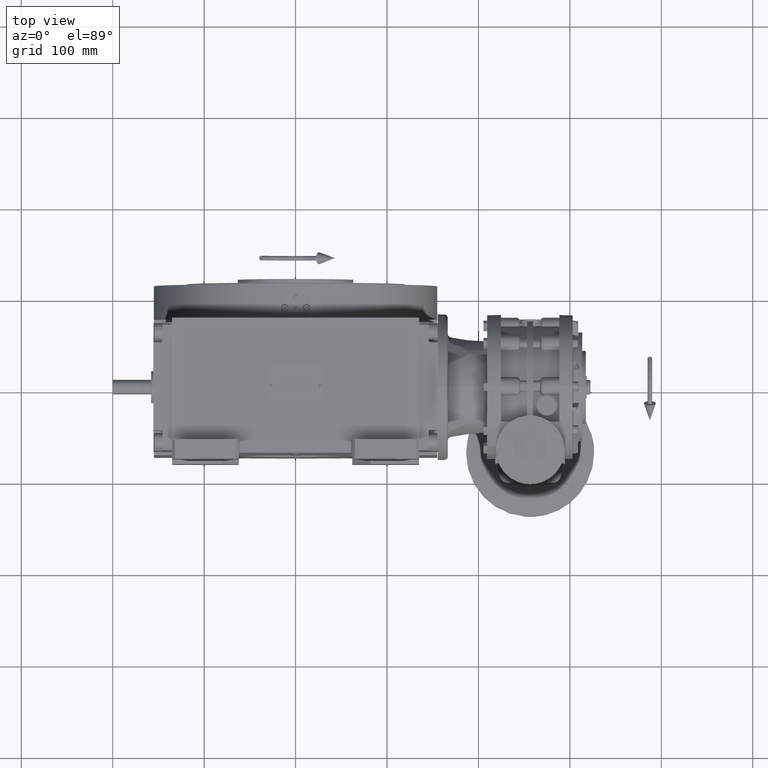
[diagram: clean part render]
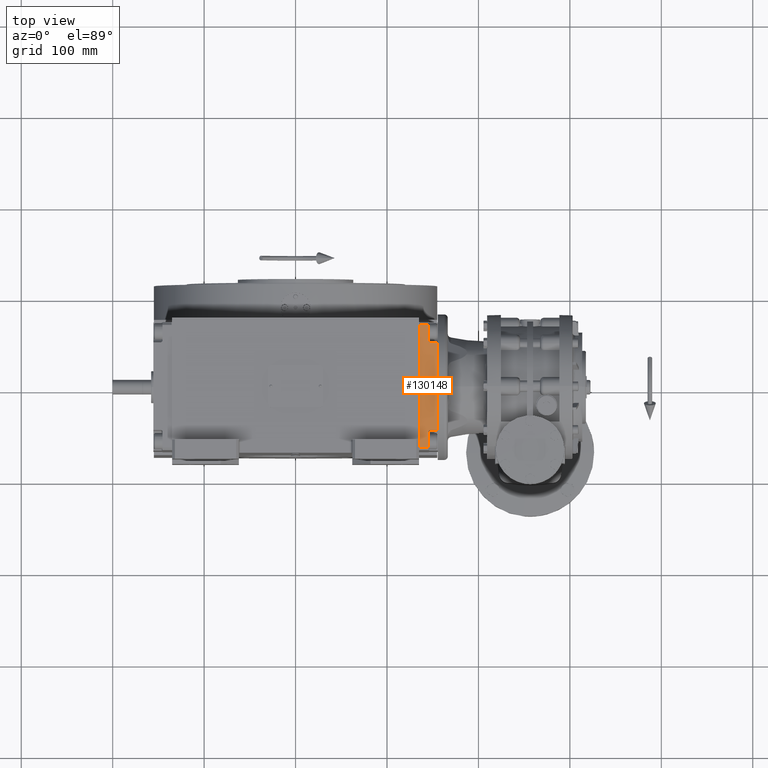
[diagram: same view with one face highlighted and labeled with its STEP entity id]
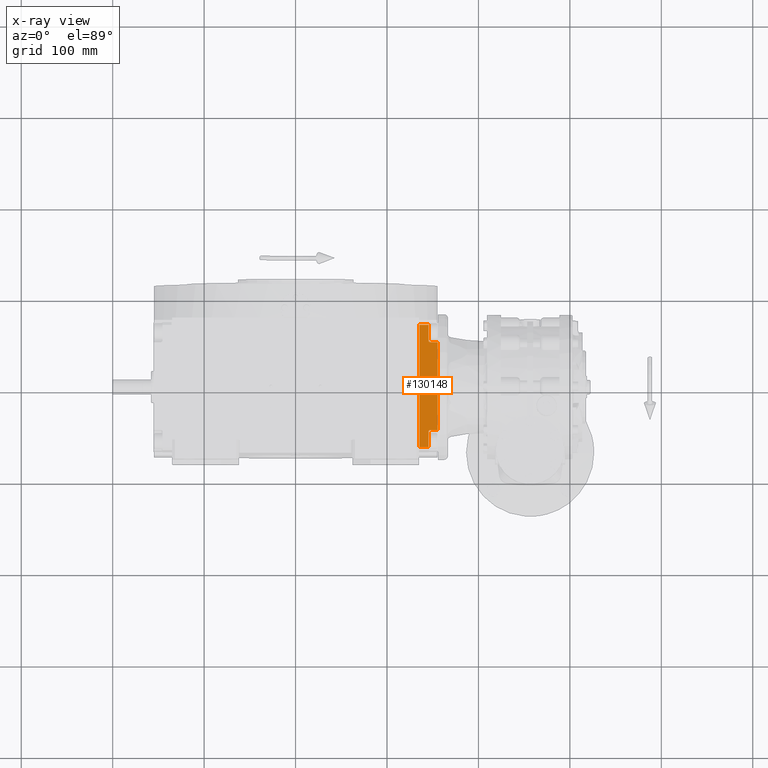
[diagram: x-ray of the same camera — body ghosted, the highlighted face saturated]
A machine part, top view. The second image highlights one B-rep face of the part: STEP entity #130148.
The next image is the same camera in x-ray: the body ghosted, the highlighted face saturated — about 0% of this face is hidden behind the body in this view.
In plain terms, the highlighted planar face has unit normal (0, 0, 1).
Its self-contained STEP definition (entity closure, byte-faithful):
#1321 = DIRECTION ( 'NONE',  ( 2.386979502944086877E-14, -2.220446049255150277E-16, 1.000000000000000000 ) ) ;
#2880 = VECTOR ( 'NONE', #109426, 1000.000000000000000 ) ;
#3302 = VERTEX_POINT ( 'NONE', #44875 ) ;
#3581 = ORIENTED_EDGE ( 'NONE', *, *, #4192, .F. ) ;
#4089 = EDGE_CURVE ( 'NONE', #112001, #67152, #32982, .T. ) ;
#4192 = EDGE_CURVE ( 'NONE', #55044, #68425, #5108, .T. ) ;
#5108 = LINE ( 'NONE', #43883, #63158 ) ;
#6893 = PLANE ( 'NONE',  #64676 ) ;
#7569 = CARTESIAN_POINT ( 'NONE',  ( 69.99999999999894840, -1.110223024625156540E-12, -66.99999999999845102 ) ) ;
#7836 = DIRECTION ( 'NONE',  ( 2.081668171172166620E-14, 0.000000000000000000, 1.000000000000000000 ) ) ;
#9528 = ORIENTED_EDGE ( 'NONE', *, *, #103646, .T. ) ;
#12049 = ORIENTED_EDGE ( 'NONE', *, *, #25373, .T. ) ;
#18414 = LINE ( 'NONE', #20406, #128558 ) ;
#19224 = CIRCLE ( 'NONE', #116911, 2.000000000000000000 ) ;
#19986 = CARTESIAN_POINT ( 'NONE',  ( 69.99999999999894840, -1.110223024625156540E-12, -66.99999999999845102 ) ) ;
#20406 = CARTESIAN_POINT ( 'NONE',  ( 70.00000000000162004, -20.00000000000220979, 48.00000000000155609 ) ) ;
#22385 = VECTOR ( 'NONE', #1321, 1000.000000000000000 ) ;
#24614 = VERTEX_POINT ( 'NONE', #128996 ) ;
#25373 = EDGE_CURVE ( 'NONE', #50495, #123554, #46253, .T. ) ;
#26517 = CARTESIAN_POINT ( 'NONE',  ( 70.00000000000106581, -10.00000000000220091, 67.00000000000156319 ) ) ;
#27546 = VECTOR ( 'NONE', #90702, 1000.000000000000000 ) ;
#28520 = VECTOR ( 'NONE', #73049, 1000.000000000000000 ) ;
#32725 = CARTESIAN_POINT ( 'NONE',  ( 70.00000000000162004, -20.00000000000220979, 48.00000000000155609 ) ) ;
#32982 = LINE ( 'NONE', #43210, #71873 ) ;
#39718 = DIRECTION ( 'NONE',  ( -2.442490654175336185E-14, 1.000000000000000000, -2.220446049251479609E-16 ) ) ;
#40339 = ORIENTED_EDGE ( 'NONE', *, *, #71774, .F. ) ;
#41217 = DIRECTION ( 'NONE',  ( -2.386979502944086877E-14, 2.220446049255150277E-16, -1.000000000000000000 ) ) ;
#42335 = EDGE_LOOP ( 'NONE', ( #134254, #9528, #12049, #83995, #3581, #81722, #92499, #45663, #40339, #59561 ) ) ;
#43162 = LINE ( 'NONE', #64203, #28520 ) ;
#43210 = CARTESIAN_POINT ( 'NONE',  ( 70.00000000000106581, -1.110223024625156540E-12, 67.00000000000156319 ) ) ;
#43883 = CARTESIAN_POINT ( 'NONE',  ( 70.00000000000162004, -20.00000000000220979, 48.00000000000155609 ) ) ;
#44575 = VERTEX_POINT ( 'NONE', #46232 ) ;
#44875 = CARTESIAN_POINT ( 'NONE',  ( 69.99999999999839417, -10.00000000000111910, -49.99999999999817391 ) ) ;
#45663 = ORIENTED_EDGE ( 'NONE', *, *, #90787, .T. ) ;
#46232 = CARTESIAN_POINT ( 'NONE',  ( 69.99999999999950262, -12.00000000000112088, -47.99999999999816680 ) ) ;
#46253 = LINE ( 'NONE', #26517, #2880 ) ;
#46395 = CARTESIAN_POINT ( 'NONE',  ( 70.00000000000051159, -10.00000000000222933, 50.00000000000155609 ) ) ;
#50432 = CARTESIAN_POINT ( 'NONE',  ( 69.99999999999950262, -20.00000000000110134, -47.99999999999816680 ) ) ;
#50495 = VERTEX_POINT ( 'NONE', #133359 ) ;
#50548 = LINE ( 'NONE', #92002, #106125 ) ;
#53857 = EDGE_CURVE ( 'NONE', #123554, #68425, #19224, .T. ) ;
#55044 = VERTEX_POINT ( 'NONE', #32725 ) ;
#59561 = ORIENTED_EDGE ( 'NONE', *, *, #124978, .F. ) ;
#60519 = DIRECTION ( 'NONE',  ( -2.386979502944086877E-14, 2.220446049255150277E-16, -1.000000000000000000 ) ) ;
#63158 = VECTOR ( 'NONE', #77150, 1000.000000000000000 ) ;
#64203 = CARTESIAN_POINT ( 'NONE',  ( 70.00000000000106581, -1.110223024625156540E-12, 67.00000000000156319 ) ) ;
#64676 = AXIS2_PLACEMENT_3D ( 'NONE', #89810, #120403, #97997 ) ;
#67152 = VERTEX_POINT ( 'NONE', #7569 ) ;
#67799 = VERTEX_POINT ( 'NONE', #50432 ) ;
#68425 = VERTEX_POINT ( 'NONE', #80554 ) ;
#69703 = DIRECTION ( 'NONE',  ( -1.000000000000000000, 2.442490654175340602E-14, -2.386979502944090033E-14 ) ) ;
#70611 = EDGE_CURVE ( 'NONE', #55044, #67799, #18414, .T. ) ;
#71774 = EDGE_CURVE ( 'NONE', #24614, #3302, #112830, .T. ) ;
#71873 = VECTOR ( 'NONE', #41217, 1000.000000000000000 ) ;
#73049 = DIRECTION ( 'NONE',  ( 2.442490654175336185E-14, -1.000000000000000000, 2.220446049251479609E-16 ) ) ;
#74162 = CARTESIAN_POINT ( 'NONE',  ( 70.00000000000051159, -12.00000000000223110, 50.00000000000155609 ) ) ;
#76191 = DIRECTION ( 'NONE',  ( -1.000000000000000000, 2.442490654175340602E-14, -2.386979502944090033E-14 ) ) ;
#77150 = DIRECTION ( 'NONE',  ( -2.442490654175336185E-14, 1.000000000000000000, -2.220446049251479609E-16 ) ) ;
#77604 = FACE_OUTER_BOUND ( 'NONE', #42335, .T. ) ;
#80554 = CARTESIAN_POINT ( 'NONE',  ( 70.00000000000051159, -12.00000000000223110, 48.00000000000155609 ) ) ;
#80687 = CARTESIAN_POINT ( 'NONE',  ( 70.00000000000106581, -1.110223024625156540E-12, 67.00000000000156319 ) ) ;
#81198 = CARTESIAN_POINT ( 'NONE',  ( 69.99999999999839417, -12.00000000000112088, -49.99999999999817391 ) ) ;
#81722 = ORIENTED_EDGE ( 'NONE', *, *, #70611, .T. ) ;
#82226 = CARTESIAN_POINT ( 'NONE',  ( 69.99999999999894840, -10.00000000000111910, -66.99999999999845102 ) ) ;
#83995 = ORIENTED_EDGE ( 'NONE', *, *, #53857, .T. ) ;
#88742 = CIRCLE ( 'NONE', #132157, 2.000000000000001776 ) ;
#89810 = CARTESIAN_POINT ( 'NONE',  ( 70.00000000000100897, -1.110223024625156540E-12, 70.00000000000156319 ) ) ;
#90702 = DIRECTION ( 'NONE',  ( 2.442490654175336185E-14, -1.000000000000000000, 2.220446049251479609E-16 ) ) ;
#90787 = EDGE_CURVE ( 'NONE', #44575, #3302, #88742, .T. ) ;
#92002 = CARTESIAN_POINT ( 'NONE',  ( 69.99999999999950262, -20.00000000000110134, -47.99999999999816680 ) ) ;
#92499 = ORIENTED_EDGE ( 'NONE', *, *, #127961, .T. ) ;
#97997 = DIRECTION ( 'NONE',  ( -2.386979502944086877E-14, 2.220446049255150277E-16, -1.000000000000000000 ) ) ;
#103646 = EDGE_CURVE ( 'NONE', #112001, #50495, #43162, .T. ) ;
#106125 = VECTOR ( 'NONE', #39718, 1000.000000000000000 ) ;
#109426 = DIRECTION ( 'NONE',  ( -2.386979502944086877E-14, 2.220446049255150277E-16, -1.000000000000000000 ) ) ;
#112001 = VERTEX_POINT ( 'NONE', #80687 ) ;
#112830 = LINE ( 'NONE', #82226, #22385 ) ;
#116302 = DIRECTION ( 'NONE',  ( -2.775557561562891351E-14, 1.000000000000000000, 0.000000000000000000 ) ) ;
#116911 = AXIS2_PLACEMENT_3D ( 'NONE', #74162, #76191, #116302 ) ;
#120403 = DIRECTION ( 'NONE',  ( 1.000000000000000000, -2.442490654175339340E-14, -2.386979502944087509E-14 ) ) ;
#123284 = LINE ( 'NONE', #19986, #27546 ) ;
#123554 = VERTEX_POINT ( 'NONE', #46395 ) ;
#124978 = EDGE_CURVE ( 'NONE', #67152, #24614, #123284, .T. ) ;
#127961 = EDGE_CURVE ( 'NONE', #67799, #44575, #50548, .T. ) ;
#128558 = VECTOR ( 'NONE', #60519, 1000.000000000000000 ) ;
#128996 = CARTESIAN_POINT ( 'NONE',  ( 69.99999999999894840, -10.00000000000111910, -66.99999999999845102 ) ) ;
#130148 = ADVANCED_FACE ( 'NONE', ( #77604 ), #6893, .T. ) ;
#132157 = AXIS2_PLACEMENT_3D ( 'NONE', #81198, #69703, #7836 ) ;
#133359 = CARTESIAN_POINT ( 'NONE',  ( 70.00000000000106581, -10.00000000000220091, 67.00000000000156319 ) ) ;
#134254 = ORIENTED_EDGE ( 'NONE', *, *, #4089, .F. ) ;